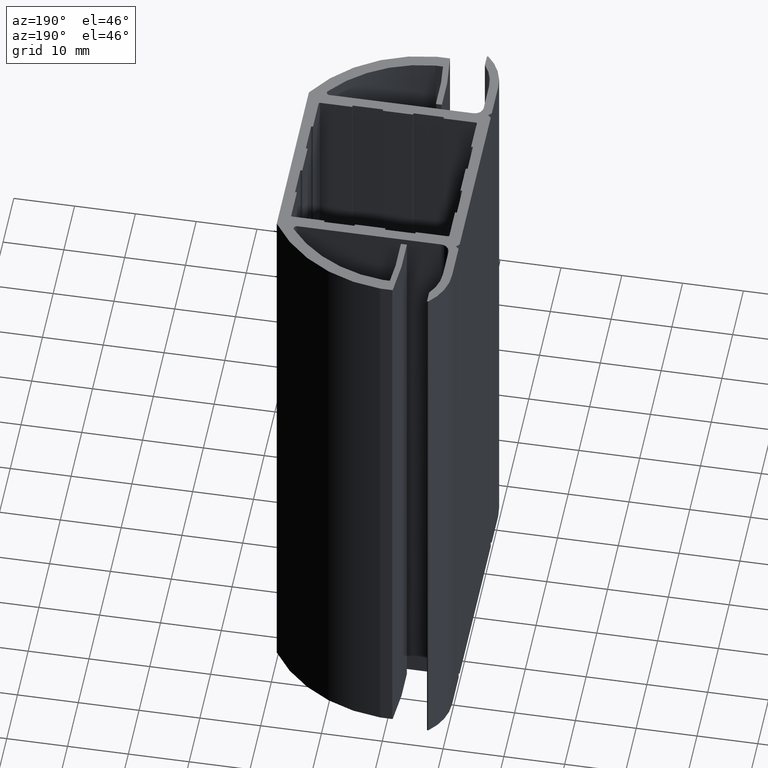
[diagram: clean part render]
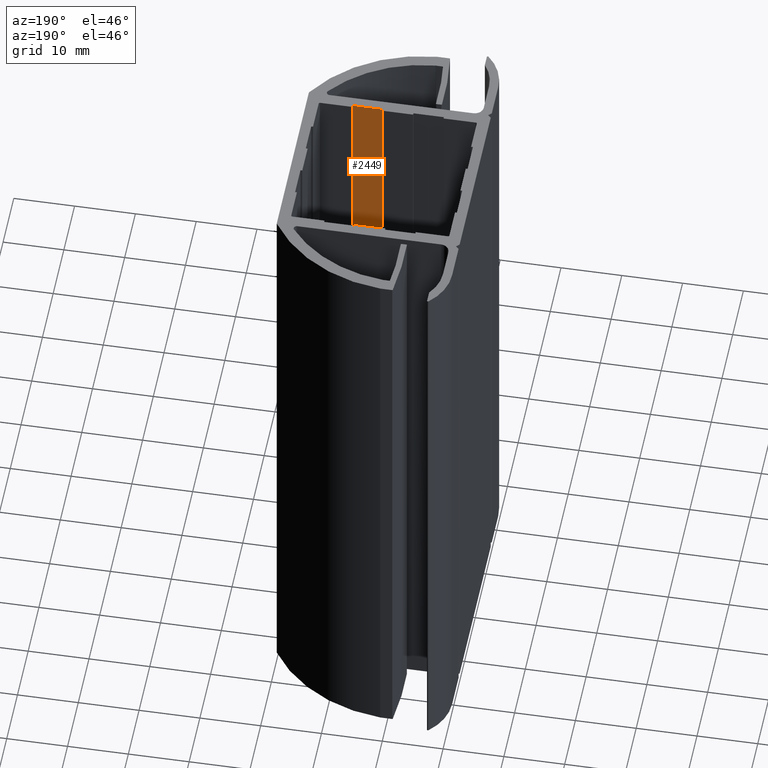
[diagram: same view with one face highlighted and labeled with its STEP entity id]
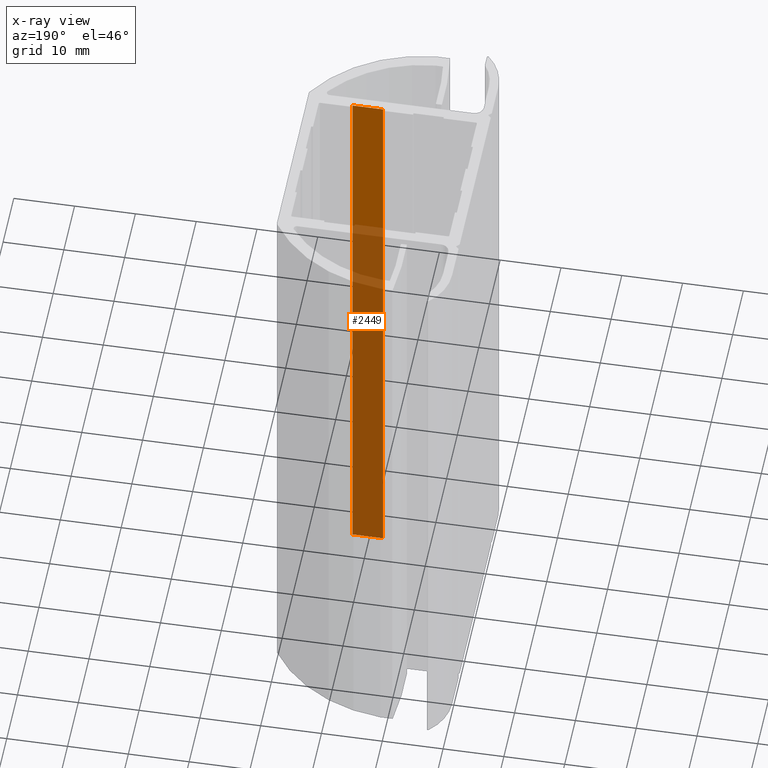
[diagram: x-ray of the same camera — body ghosted, the highlighted face saturated]
A machine part, auxiliary view. The second image highlights one B-rep face of the part: STEP entity #2449.
The next image is the same camera in x-ray: the body ghosted, the highlighted face saturated — about 72% of this face is hidden behind the body in this view.
In plain terms, the highlighted planar face has unit normal (0, 1, 0).
Its self-contained STEP definition (entity closure, byte-faithful):
#2393=CARTESIAN_POINT('',(22.500000000000000,-13.299999999999983,-100.0));
#2394=VERTEX_POINT('',#2393);
#2401=CARTESIAN_POINT('',(22.500000000000000,-13.299999999999983,0.0));
#2402=VERTEX_POINT('',#2401);
#2403=CARTESIAN_POINT('',(22.500000000000000,-13.299999999999983,-100.0));
#2404=DIRECTION('',(0.0,0.0,1.0));
#2405=VECTOR('',#2404,100.0);
#2406=LINE('',#2403,#2405);
#2407=EDGE_CURVE('',#2394,#2402,#2406,.T.);
#2419=CARTESIAN_POINT('',(22.500000000000000,-13.299999999999983,-100.0));
#2420=DIRECTION('',(0.0,1.0,0.0));
#2421=DIRECTION('',(-1.0,0.0,0.0));
#2422=AXIS2_PLACEMENT_3D('',#2419,#2420,#2421);
#2423=PLANE('',#2422);
#2424=CARTESIAN_POINT('',(17.500000000000000,-13.299999999999983,-100.0));
#2425=VERTEX_POINT('',#2424);
#2426=CARTESIAN_POINT('',(22.500000000000000,-13.299999999999983,-100.0));
#2427=DIRECTION('',(-1.0,0.0,0.0));
#2428=VECTOR('',#2427,5.0);
#2429=LINE('',#2426,#2428);
#2430=EDGE_CURVE('',#2394,#2425,#2429,.T.);
#2431=ORIENTED_EDGE('',*,*,#2430,.T.);
#2432=CARTESIAN_POINT('',(17.500000000000000,-13.299999999999983,0.0));
#2433=VERTEX_POINT('',#2432);
#2434=CARTESIAN_POINT('',(17.500000000000000,-13.299999999999983,-100.0));
#2435=DIRECTION('',(0.0,0.0,1.0));
#2436=VECTOR('',#2435,100.0);
#2437=LINE('',#2434,#2436);
#2438=EDGE_CURVE('',#2425,#2433,#2437,.T.);
#2439=ORIENTED_EDGE('',*,*,#2438,.T.);
#2440=CARTESIAN_POINT('',(22.500000000000000,-13.299999999999983,0.0));
#2441=DIRECTION('',(-1.0,0.0,0.0));
#2442=VECTOR('',#2441,5.0);
#2443=LINE('',#2440,#2442);
#2444=EDGE_CURVE('',#2402,#2433,#2443,.T.);
#2445=ORIENTED_EDGE('',*,*,#2444,.F.);
#2446=ORIENTED_EDGE('',*,*,#2407,.F.);
#2447=EDGE_LOOP('',(#2431,#2439,#2445,#2446));
#2448=FACE_OUTER_BOUND('',#2447,.T.);
#2449=ADVANCED_FACE('',(#2448),#2423,.T.);